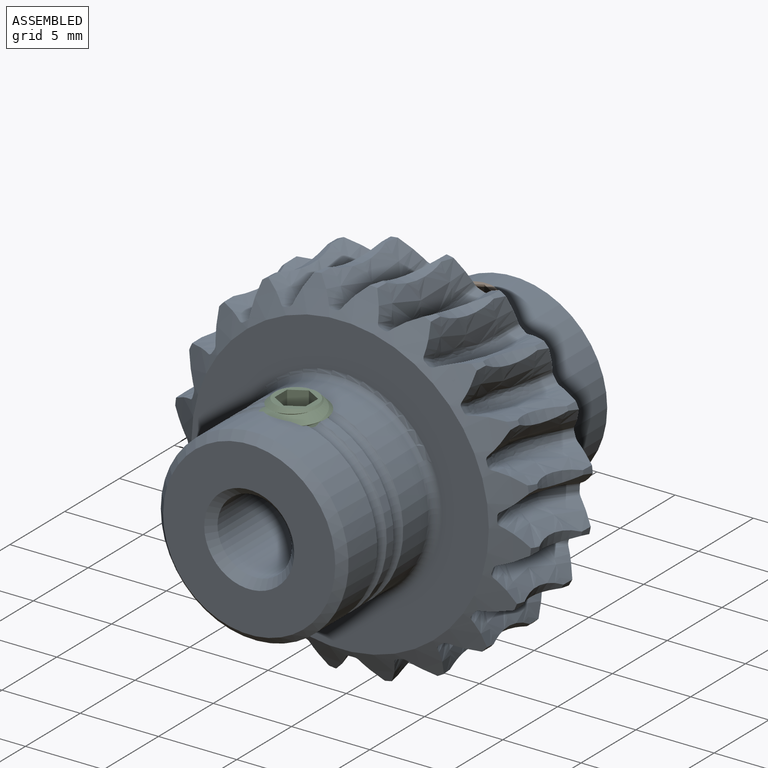
[diagram: assembled view]
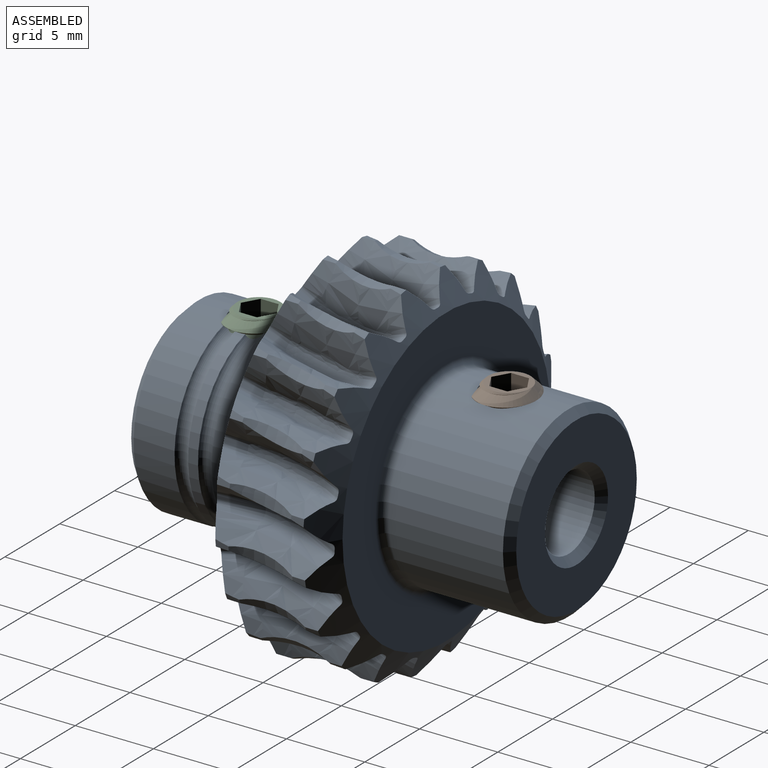
[diagram: assembled view, second angle]
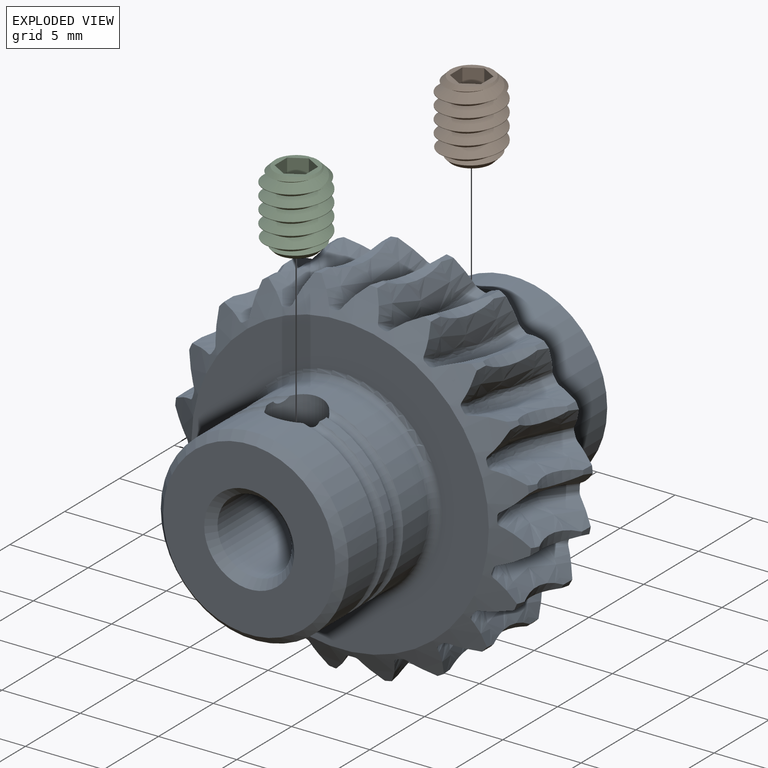
[diagram: exploded view]
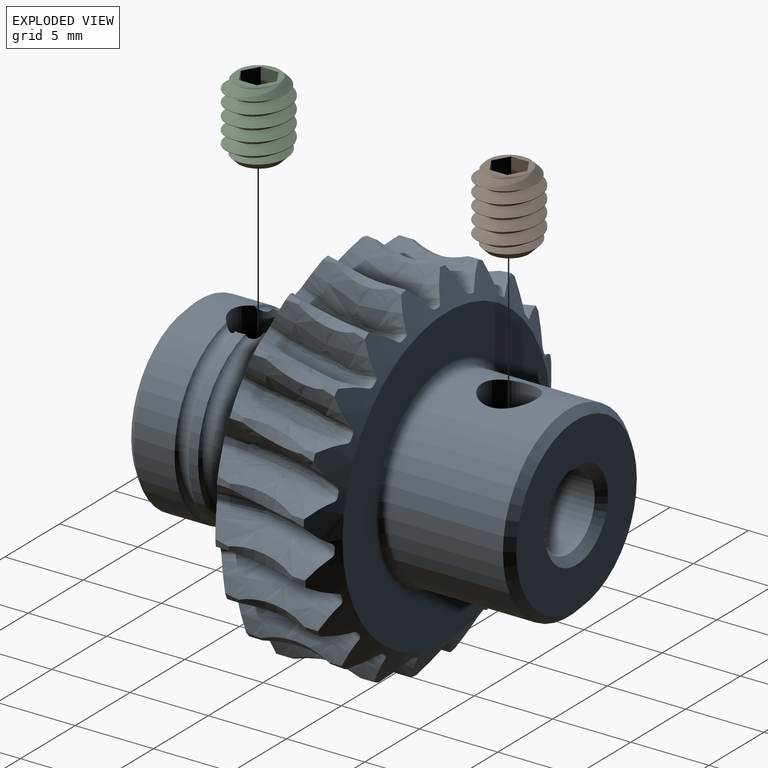
[diagram: exploded view, second angle]
ASSEMBLY  parts=3 mates=2
PART A: 101 faces, bbox 24.8x24.6x24.8 mm
  f0: torus R=6.25mm, axis (0,1,0), area 35.2mm2, adj f34,f35,f36
  f1: torus R=6.25mm, axis (0,1,0), area 35.2mm2, adj f33,f34,f36
  f2: torus R=16mm, axis (0,-1,0), area 2.2mm2, adj f41,f42,f81,f100
  f3: torus R=16mm, axis (0,-1,0), area 2.2mm2, adj f79,f80,f81,f82
  f4: torus R=16mm, axis (0,-1,0), area 2.2mm2, adj f77,f78,f82,f83
  f5: torus R=16mm, axis (0,-1,0), area 2.2mm2, adj f75,f76,f83,f84
  f6: torus R=16mm, axis (0,-1,0), area 2.2mm2, adj f73,f74,f84,f85
  f7: torus R=16mm, axis (0,-1,0), area 2.2mm2, adj f71,f72,f85,f86
  f8: torus R=16mm, axis (0,-1,0), area 2.2mm2, adj f69,f70,f86,f87
  f9: torus R=16mm, axis (0,-1,0), area 2.2mm2, adj f67,f68,f87,f88
  f10: torus R=16mm, axis (0,-1,0), area 2.2mm2, adj f65,f66,f88,f89
  f11: torus R=16mm, axis (0,-1,0), area 2.2mm2, adj f63,f64,f89,f90
  f12: torus R=16mm, axis (0,-1,0), area 2.2mm2, adj f61,f62,f90,f91
  f13: torus R=16mm, axis (0,-1,0), area 2.2mm2, adj f59,f60,f91,f92
  f14: torus R=16mm, axis (0,-1,0), area 2.2mm2, adj f57,f58,f92,f93
  f15: torus R=16mm, axis (0,-1,0), area 2.2mm2, adj f55,f56,f93,f94
  f16: torus R=16mm, axis (0,-1,0), area 2.2mm2, adj f53,f54,f94,f95
  f17: torus R=16mm, axis (0,-1,0), area 2.2mm2, adj f51,f52,f95,f96
  f18: torus R=16mm, axis (0,-1,0), area 2.2mm2, adj f49,f50,f96,f97
  f19: torus R=16mm, axis (0,-1,0), area 2.2mm2, adj f47,f48,f97,f98
  f20: torus R=16mm, axis (0,-1,0), area 2.2mm2, adj f45,f46,f98,f99
  f21: torus R=16mm, axis (0,-1,0), area 2.2mm2, adj f43,f44,f99,f100
  f22: cone r=5.5mm half-angle=45deg, axis (0,1,0), area 25.5mm2, adj f35,f38
  f23: cone r=6mm half-angle=45deg, axis (0,-1,0), area 25.5mm2, adj f30,f37
  f24: torus R=6.5mm, axis (0,1,0), area 30.5mm2, adj f33,f39
  f25: torus R=6.5mm, axis (0,-1,0), area 30.5mm2, adj f30,f40
  f26: cylinder r=1.73mm len=3.63mm, axis (0,0,-1), area 39.3mm2, adj f28,f30
  f27: cone r=2.38mm half-angle=45deg, axis (0,-1,0), area 11.7mm2, adj f28,f38
  f28: cylinder r=2.38mm len=23.6mm, axis (0,-1,0), area 331.8mm2, adj f26,f27,f29,f34
  f29: cone r=2.88mm half-angle=45deg, axis (0,1,0), area 11.7mm2, adj f28,f37
  f30: cylinder r=6mm len=12mm, axis (0,-1,0), area 265.7mm2, adj f23,f25,f26
  f31: cone r=9.5mm half-angle=58.4deg, axis (0,-1,0), area 79.4mm2, adj f40,f42,f44,f46,f48,f50,f52,f54
  f32: cone r=11.42mm half-angle=58.4deg, axis (0,1,0), area 79.7mm2, adj f39,f41,f43,f45,f47,f49,f51,f53
  f33: cylinder r=6mm len=12mm, axis (0,-1,0), area 86.7mm2, adj f1,f24,f34
  f34: cylinder r=1.73mm len=4.37mm, axis (0,0,-1), area 41.2mm2, adj f0,f1,f28,f33,f35,f36
  f35: cylinder r=6mm len=12mm, axis (0,-1,0), area 98mm2, adj f0,f22,f34
  f36: cylinder r=6mm len=12mm, axis (0,-1,0), area 21.7mm2, adj f0,f1,f34
  f37: plane 11x11mm, normal (0,1,0), area 69.1mm2, adj f23,f29
  f38: plane 11x11mm, normal (0,-1,0), area 69.1mm2, adj f22,f27
  f39: plane 19x19mm, normal (0,-1,0), area 150.8mm2, adj f24,f32
  f40: plane 19x19mm, normal (0,1,0), area 150.8mm2, adj f25,f31
  f41: cylinder r=11.42mm len=0.82mm, axis (0,-1,0), area 0.3mm2, adj f2,f32,f81,f100
  f42: cylinder r=11.42mm len=0.82mm, axis (0,-1,0), area 0.3mm2, adj f2,f31,f81,f100
  f43: cylinder r=11.42mm len=0.82mm, axis (0,-1,0), area 0.3mm2, adj f21,f32,f99,f100
  f44: cylinder r=11.42mm len=0.82mm, axis (0,-1,0), area 0.3mm2, adj f21,f31,f99,f100
  f45: cylinder r=11.42mm len=0.82mm, axis (0,-1,0), area 0.3mm2, adj f20,f32,f98,f99
  f46: cylinder r=11.42mm len=0.82mm, axis (0,-1,0), area 0.3mm2, adj f20,f31,f98,f99
  f47: cylinder r=11.42mm len=0.82mm, axis (0,-1,0), area 0.3mm2, adj f19,f32,f97,f98
  f48: cylinder r=11.42mm len=0.82mm, axis (0,-1,0), area 0.3mm2, adj f19,f31,f97,f98
  f49: cylinder r=11.42mm len=0.82mm, axis (0,-1,0), area 0.3mm2, adj f18,f32,f96,f97
  f50: cylinder r=11.42mm len=0.82mm, axis (0,-1,0), area 0.3mm2, adj f18,f31,f96,f97
  f51: cylinder r=11.42mm len=0.82mm, axis (0,-1,0), area 0.3mm2, adj f17,f32,f95,f96
  f52: cylinder r=11.42mm len=0.82mm, axis (0,-1,0), area 0.3mm2, adj f17,f31,f95,f96
  f53: cylinder r=11.42mm len=0.82mm, axis (0,-1,0), area 0.3mm2, adj f16,f32,f94,f95
  f54: cylinder r=11.42mm len=0.82mm, axis (0,-1,0), area 0.3mm2, adj f16,f31,f94,f95
  f55: cylinder r=11.42mm len=0.82mm, axis (0,-1,0), area 0.3mm2, adj f15,f32,f93,f94
  f56: cylinder r=11.42mm len=0.82mm, axis (0,-1,0), area 0.3mm2, adj f15,f31,f93,f94
  f57: cylinder r=11.42mm len=0.82mm, axis (0,-1,0), area 0.3mm2, adj f14,f32,f92,f93
  f58: cylinder r=11.42mm len=0.82mm, axis (0,-1,0), area 0.3mm2, adj f14,f31,f92,f93
  f59: cylinder r=11.42mm len=0.82mm, axis (0,-1,0), area 0.3mm2, adj f13,f32,f91,f92
  f60: cylinder r=11.42mm len=0.82mm, axis (0,-1,0), area 0.3mm2, adj f13,f31,f91,f92
  f61: cylinder r=11.42mm len=0.82mm, axis (0,-1,0), area 0.3mm2, adj f12,f32,f90,f91
  f62: cylinder r=11.42mm len=0.82mm, axis (0,-1,0), area 0.3mm2, adj f12,f31,f90,f91
  f63: cylinder r=11.42mm len=0.82mm, axis (0,-1,0), area 0.3mm2, adj f11,f32,f89,f90
  f64: cylinder r=11.42mm len=0.82mm, axis (0,-1,0), area 0.3mm2, adj f11,f31,f89,f90
  f65: cylinder r=11.42mm len=0.82mm, axis (0,-1,0), area 0.3mm2, adj f10,f32,f88,f89
  f66: cylinder r=11.42mm len=0.82mm, axis (0,-1,0), area 0.3mm2, adj f10,f31,f88,f89
  f67: cylinder r=11.42mm len=0.82mm, axis (0,-1,0), area 0.3mm2, adj f9,f32,f87,f88
  f68: cylinder r=11.42mm len=0.82mm, axis (0,-1,0), area 0.3mm2, adj f9,f31,f87,f88
  f69: cylinder r=11.42mm len=0.82mm, axis (0,-1,0), area 0.3mm2, adj f8,f32,f86,f87
  f70: cylinder r=11.42mm len=0.82mm, axis (0,-1,0), area 0.3mm2, adj f8,f31,f86,f87
  f71: cylinder r=11.42mm len=0.82mm, axis (0,-1,0), area 0.3mm2, adj f7,f32,f85,f86
  f72: cylinder r=11.42mm len=0.82mm, axis (0,-1,0), area 0.3mm2, adj f7,f31,f85,f86
  f73: cylinder r=11.42mm len=0.82mm, axis (0,-1,0), area 0.3mm2, adj f6,f32,f84,f85
  f74: cylinder r=11.42mm len=0.82mm, axis (0,-1,0), area 0.3mm2, adj f6,f31,f84,f85
  f75: cylinder r=11.42mm len=0.82mm, axis (0,-1,0), area 0.3mm2, adj f5,f32,f83,f84
  f76: cylinder r=11.42mm len=0.82mm, axis (0,-1,0), area 0.3mm2, adj f5,f31,f83,f84
  f77: cylinder r=11.42mm len=0.82mm, axis (0,-1,0), area 0.3mm2, adj f4,f32,f82,f83
  f78: cylinder r=11.42mm len=0.82mm, axis (0,-1,0), area 0.3mm2, adj f4,f31,f82,f83
  f79: cylinder r=11.42mm len=0.82mm, axis (0,-1,0), area 0.3mm2, adj f3,f32,f81,f82
  f80: cylinder r=11.42mm len=0.82mm, axis (0,-1,0), area 0.3mm2, adj f3,f31,f81,f82
  f81: bspline ~8.39x5.96mm, area 36.6mm2, adj f2,f3,f31,f32,f41,f42,f79,f80
  f82: bspline ~8.39x5.67mm, area 36.6mm2, adj f3,f4,f31,f32,f77,f78,f79,f80
  f83: bspline ~8.39x4.82mm, area 36.6mm2, adj f4,f5,f31,f32,f75,f76,f77,f78
  f84: bspline ~8.39x4.82mm, area 36.6mm2, adj f5,f6,f31,f32,f73,f74,f75,f76
  f85: bspline ~8.39x5.67mm, area 36.6mm2, adj f6,f7,f31,f32,f71,f72,f73,f74
  f86: bspline ~8.79x6.31mm, area 36.9mm2, adj f7,f8,f31,f32,f69,f70,f71,f72
  f87: bspline ~8.39x5.67mm, area 36.6mm2, adj f8,f9,f31,f32,f67,f68,f69,f70
  f88: bspline ~8.39x4.82mm, area 36.6mm2, adj f9,f10,f31,f32,f65,f66,f67,f68
  f89: bspline ~8.39x4.82mm, area 36.6mm2, adj f10,f11,f31,f32,f63,f64,f65,f66
  f90: bspline ~8.39x5.67mm, area 36.6mm2, adj f11,f12,f31,f32,f61,f62,f63,f64
  f91: bspline ~8.39x5.96mm, area 36.6mm2, adj f12,f13,f31,f32,f59,f60,f61,f62
  f92: bspline ~8.39x5.67mm, area 36.6mm2, adj f13,f14,f31,f32,f57,f58,f59,f60
  f93: bspline ~8.39x4.82mm, area 36.6mm2, adj f14,f15,f31,f32,f55,f56,f57,f58
  f94: bspline ~8.39x4.82mm, area 36.6mm2, adj f15,f16,f31,f32,f53,f54,f55,f56
  f95: bspline ~8.39x5.67mm, area 36.6mm2, adj f16,f17,f31,f32,f51,f52,f53,f54
  f96: bspline ~8.79x6.31mm, area 36.9mm2, adj f17,f18,f31,f32,f49,f50,f51,f52
  f97: bspline ~8.39x5.67mm, area 36.6mm2, adj f18,f19,f31,f32,f47,f48,f49,f50
  f98: bspline ~8.39x4.82mm, area 36.6mm2, adj f19,f20,f31,f32,f45,f46,f47,f48
  f99: bspline ~8.39x4.82mm, area 36.6mm2, adj f20,f21,f31,f32,f43,f44,f45,f46
  f100: bspline ~8.39x5.67mm, area 36.6mm2, adj f2,f21,f31,f32,f41,f42,f43,f44
PART B: 15 faces, bbox 4x4x5.7 mm
  f0: cone r=1.02mm half-angle=60deg, axis (0,0,-1), area 3.7mm2, adj f1
  f1: plane 2.54x2.54mm, normal (0,0,-1), area 1.8mm2, adj f0,f3
  f2: cylinder r=1.99mm len=3.99mm, axis (0,0,-1), area 1.6mm2, adj f3,f4,f5,f6
  f3: cone r=1.99mm half-angle=45deg, axis (0,0,1), area 5.4mm2, adj f1,f2,f4,f6
  f4: bspline ~5.27x4.04mm, area 40.4mm2, adj f2,f3,f5,f6,f13
  f5: cone r=1.99mm half-angle=45deg, axis (0,0,-1), area 4.5mm2, adj f2,f4,f6,f13
  f6: bspline ~5.27x4.04mm, area 40.5mm2, adj f2,f3,f4,f5,f13
  f7: plane 1.78x0.99mm, normal (-0.5,-0.87,0), area 2mm2, adj f9,f10,f11,f13
  f8: plane 1.78x1.15mm, normal (1,0,0), area 2mm2, adj f9,f11,f12,f13
  f9: plane 1.78x0.99mm, normal (0.5,-0.87,0), area 2mm2, adj f7,f8,f11,f13
  f10: plane 1.78x1.15mm, normal (-1,0,0), area 2mm2, adj f7,f11,f13,f14
  f11: plane 2.29x1.98mm, normal (0,0,1), area 3.4mm2, adj f7,f8,f9,f10,f12,f14
  f12: plane 1.78x0.99mm, normal (0.5,0.87,0), area 2mm2, adj f8,f11,f13,f14
  f13: plane 2.72x2.71mm, normal (0,0,1), area 2.4mm2, adj f4,f5,f6,f7,f8,f9,f10,f12
  f14: plane 1.78x0.99mm, normal (-0.5,0.87,0), area 2mm2, adj f10,f11,f12,f13
PART C: same geometry as B
PLACE A t=(4.63,-1.03,0)mm
PLACE B t=(4.63,6.97,1.76)mm
PLACE C t=(4.63,-9.03,1.76)mm
MATE fastened C.f0 <-> A.f34  axis (0,0,1) through (4.63,-9.03,6.53)mm
MATE fastened B.f0 <-> A.f26  axis (0,0,1) through (4.63,6.97,6.53)mm
